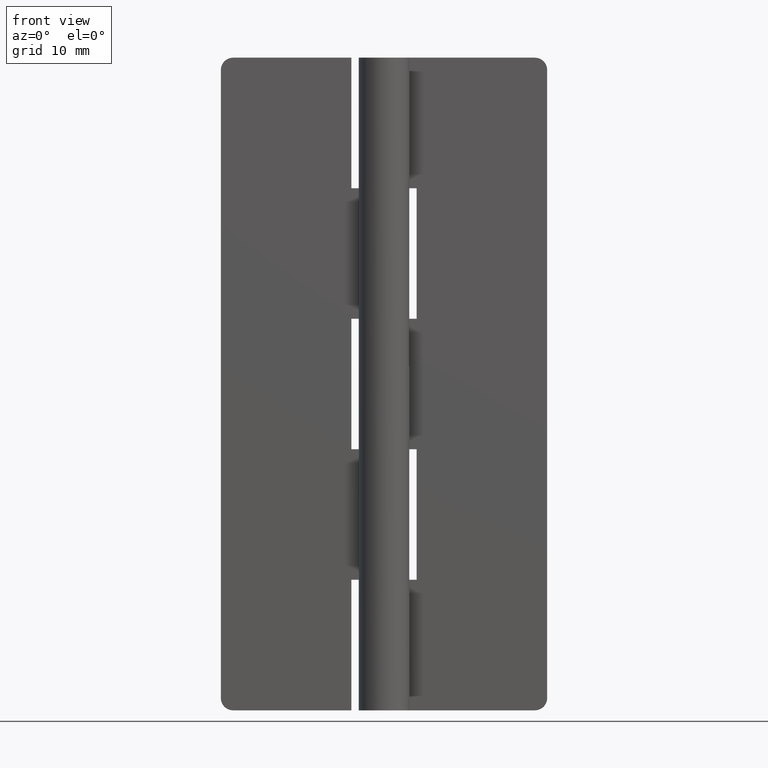
[diagram: clean part render]
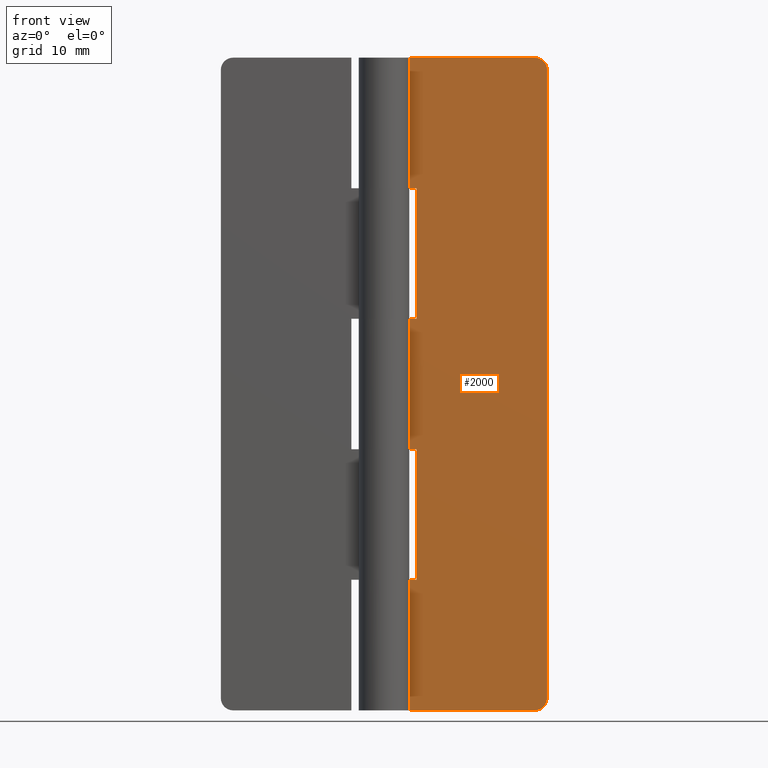
[diagram: same view with one face highlighted and labeled with its STEP entity id]
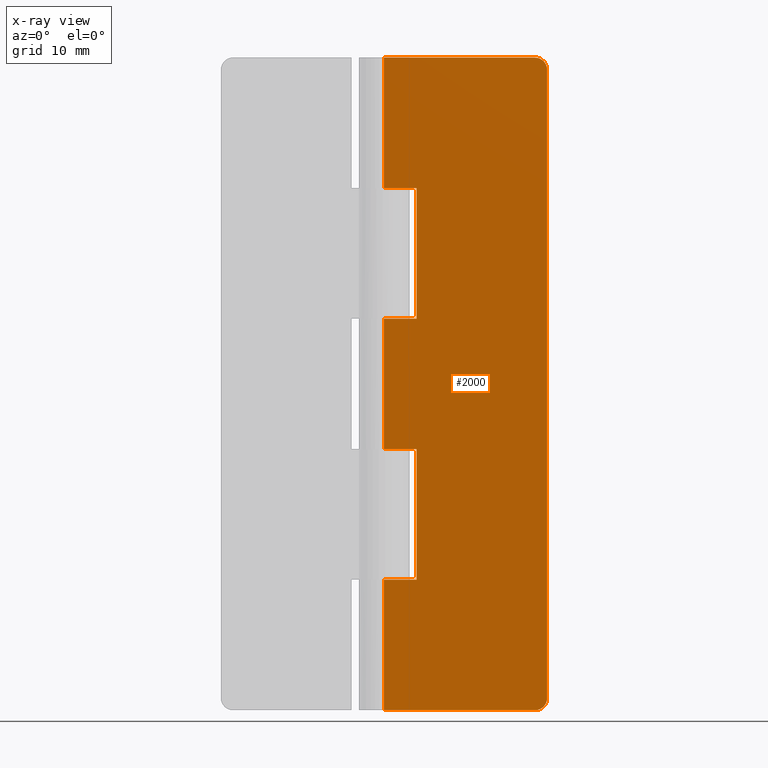
[diagram: x-ray of the same camera — body ghosted, the highlighted face saturated]
A machine part, front view. The second image highlights one B-rep face of the part: STEP entity #2000.
The next image is the same camera in x-ray: the body ghosted, the highlighted face saturated — about 0% of this face is hidden behind the body in this view.
In plain terms, the highlighted face is a freeform B-spline surface patch.
Its self-contained STEP definition (entity closure, byte-faithful):
#970=CARTESIAN_POINT('',(-2.755372E-016,1.500000000000000,63.999992999999897));
#971=VERTEX_POINT('',#970);
#987=CARTESIAN_POINT('',(-2.755364E-016,1.500000000000000,79.999992999999890));
#988=VERTEX_POINT('',#987);
#989=CARTESIAN_POINT('',(-2.755364E-016,1.500000000000000,79.999992999999890));
#990=CARTESIAN_POINT('',(-2.755372E-016,1.500000000000000,63.999992999999897));
#991=QUASI_UNIFORM_CURVE('',1,(#989,#990),.UNSPECIFIED.,.F.,.U.);
#992=EDGE_CURVE('',#988,#971,#991,.T.);
#1200=CARTESIAN_POINT('',(-2.755372E-016,1.500000000000000,16.0));
#1201=VERTEX_POINT('',#1200);
#1202=CARTESIAN_POINT('',(-2.755364E-016,1.500000000000000,0.0));
#1203=VERTEX_POINT('',#1202);
#1204=CARTESIAN_POINT('',(-2.755372E-016,1.500000000000000,16.0));
#1205=CARTESIAN_POINT('',(-2.755364E-016,1.500000000000000,0.0));
#1206=QUASI_UNIFORM_CURVE('',1,(#1204,#1205),.UNSPECIFIED.,.F.,.U.);
#1207=EDGE_CURVE('',#1201,#1203,#1206,.T.);
#1543=CARTESIAN_POINT('',(20.0,1.500000000000000,78.499992999999890));
#1544=VERTEX_POINT('',#1543);
#1545=CARTESIAN_POINT('',(18.500000000000000,1.500000000000000,79.999992999999890));
#1546=VERTEX_POINT('',#1545);
#1547=CARTESIAN_POINT('',(20.0,1.500000000000000,78.499992999999890));
#1548=CARTESIAN_POINT('',(20.000178523774490,1.500000000000001,78.684105104037585));
#1549=CARTESIAN_POINT('',(19.949638166129070,1.500000000000000,78.953944211892406));
#1550=CARTESIAN_POINT('',(19.771350052891041,1.499999999999999,79.319239732970445));
#1551=CARTESIAN_POINT('',(19.570176106960488,1.500000000000000,79.570623503139785));
#1552=CARTESIAN_POINT('',(19.297955731712040,1.500000000000000,79.783024714451770));
#1553=CARTESIAN_POINT('',(18.953987153785821,1.499999999999998,79.950942547732652));
#1554=CARTESIAN_POINT('',(18.671825384450528,1.500000000000006,80.000118908166641));
#1555=CARTESIAN_POINT('',(18.500000000000000,1.500000000000000,79.999992999999890));
#1556=B_SPLINE_CURVE_WITH_KNOTS('',3,(#1547,#1548,#1549,#1550,#1551,#1552,#1553,#1554,#1555),.UNSPECIFIED.,.F.,.U.,(4,1,1,1,1,1,4),(0.000000155784129,0.552245198398489,0.809965692573615,1.214921786606415,1.509469885799841,1.840824165891554,2.356253616514417),.UNSPECIFIED.);
#1557=EDGE_CURVE('',#1544,#1546,#1556,.T.);
#1587=CARTESIAN_POINT('',(18.500000000000000,1.500000000000000,0.0));
#1588=VERTEX_POINT('',#1587);
#1589=CARTESIAN_POINT('',(20.0,1.500000000000000,1.499999999999946));
#1590=VERTEX_POINT('',#1589);
#1591=CARTESIAN_POINT('',(18.500000000000000,1.500000000000000,0.0));
#1592=CARTESIAN_POINT('',(18.720949731654251,1.500000000000001,-0.000337399588411));
#1593=CARTESIAN_POINT('',(19.101090521542069,1.499999999999998,0.085619543185481));
#1594=CARTESIAN_POINT('',(19.521253181748261,1.500000000000003,0.373957292317985));
#1595=CARTESIAN_POINT('',(19.772221378416909,1.499999999999999,0.679857069147921));
#1596=CARTESIAN_POINT('',(19.950938973949309,1.500000000000001,1.046019893959789));
#1597=CARTESIAN_POINT('',(20.000129013770358,1.500000000000000,1.328172726951464));
#1598=CARTESIAN_POINT('',(20.0,1.500000000000000,1.499999999999946));
#1599=B_SPLINE_CURVE_WITH_KNOTS('',3,(#1591,#1592,#1593,#1594,#1595,#1596,#1597,#1598),.UNSPECIFIED.,.F.,.U.,(4,1,1,1,1,4),(0.000000155788698,0.662697979282108,1.141330928466820,1.509469885800160,1.840824165891491,2.356253616514293),.UNSPECIFIED.);
#1600=EDGE_CURVE('',#1588,#1590,#1599,.T.);
#1626=CARTESIAN_POINT('',(3.999987999999915,1.500000000000000,16.0));
#1627=VERTEX_POINT('',#1626);
#1628=CARTESIAN_POINT('',(3.999987999999915,1.500000000000000,16.0));
#1629=CARTESIAN_POINT('',(-2.755372E-016,1.500000000000000,16.0));
#1630=QUASI_UNIFORM_CURVE('',1,(#1628,#1629),.UNSPECIFIED.,.F.,.U.);
#1631=EDGE_CURVE('',#1627,#1201,#1630,.T.);
#1694=CARTESIAN_POINT('',(3.999987999999915,1.499999999999946,32.0));
#1695=VERTEX_POINT('',#1694);
#1701=CARTESIAN_POINT('',(-2.755372E-016,1.500000000000000,32.0));
#1702=VERTEX_POINT('',#1701);
#1703=CARTESIAN_POINT('',(-2.755372E-016,1.500000000000000,32.0));
#1704=CARTESIAN_POINT('',(3.999987999999915,1.499999999999946,32.0));
#1705=QUASI_UNIFORM_CURVE('',1,(#1703,#1704),.UNSPECIFIED.,.F.,.U.);
#1706=EDGE_CURVE('',#1702,#1695,#1705,.T.);
#1758=CARTESIAN_POINT('',(3.999987999999915,1.499999999999946,32.0));
#1759=CARTESIAN_POINT('',(3.999987999999915,1.500000000000000,16.0));
#1760=QUASI_UNIFORM_CURVE('',1,(#1758,#1759),.UNSPECIFIED.,.F.,.U.);
#1761=EDGE_CURVE('',#1695,#1627,#1760,.T.);
#1775=CARTESIAN_POINT('',(3.999987999999915,1.499999999999946,63.999992999999897));
#1776=VERTEX_POINT('',#1775);
#1782=CARTESIAN_POINT('',(-2.755372E-016,1.500000000000000,63.999992999999897));
#1783=CARTESIAN_POINT('',(3.999987999999915,1.499999999999946,63.999992999999897));
#1784=QUASI_UNIFORM_CURVE('',1,(#1782,#1783),.UNSPECIFIED.,.F.,.U.);
#1785=EDGE_CURVE('',#971,#1776,#1784,.T.);
#1864=CARTESIAN_POINT('',(-2.755372E-016,1.500000000000000,47.999992999999897));
#1865=VERTEX_POINT('',#1864);
#1882=CARTESIAN_POINT('',(3.999987999999915,1.500000000000000,47.999992999999897));
#1883=VERTEX_POINT('',#1882);
#1884=CARTESIAN_POINT('',(3.999987999999915,1.500000000000000,47.999992999999897));
#1885=CARTESIAN_POINT('',(-2.755372E-016,1.500000000000000,47.999992999999897));
#1886=QUASI_UNIFORM_CURVE('',1,(#1884,#1885),.UNSPECIFIED.,.F.,.U.);
#1887=EDGE_CURVE('',#1883,#1865,#1886,.T.);
#1911=CARTESIAN_POINT('',(3.999987999999915,1.499999999999946,63.999992999999897));
#1912=CARTESIAN_POINT('',(3.999987999999915,1.500000000000000,47.999992999999897));
#1913=QUASI_UNIFORM_CURVE('',1,(#1911,#1912),.UNSPECIFIED.,.F.,.U.);
#1914=EDGE_CURVE('',#1776,#1883,#1913,.T.);
#1926=CARTESIAN_POINT('',(-2.755364E-016,1.500000000000000,0.0));
#1927=CARTESIAN_POINT('',(18.500000000000000,1.500000000000000,0.0));
#1928=QUASI_UNIFORM_CURVE('',1,(#1926,#1927),.UNSPECIFIED.,.F.,.U.);
#1929=EDGE_CURVE('',#1203,#1588,#1928,.T.);
#1944=CARTESIAN_POINT('',(-2.755364E-016,1.500000000000000,79.999992999999890));
#1945=CARTESIAN_POINT('',(18.500000000000000,1.500000000000000,79.999992999999890));
#1946=QUASI_UNIFORM_CURVE('',1,(#1944,#1945),.UNSPECIFIED.,.F.,.U.);
#1947=EDGE_CURVE('',#988,#1546,#1946,.T.);
#1964=CARTESIAN_POINT('',(20.0,1.500000000000000,78.499992999999890));
#1965=CARTESIAN_POINT('',(20.0,1.500000000000000,1.499999999999946));
#1966=QUASI_UNIFORM_CURVE('',1,(#1964,#1965),.UNSPECIFIED.,.F.,.U.);
#1967=EDGE_CURVE('',#1544,#1590,#1966,.T.);
#1975=CARTESIAN_POINT('',(-0.998999961236118,1.500000000000000,-3.995999495294482));
#1976=CARTESIAN_POINT('',(-0.998999961236118,1.500000000000000,83.995994641061401));
#1977=CARTESIAN_POINT('',(20.999000497677919,1.500000000000000,-3.995999495294482));
#1978=CARTESIAN_POINT('',(20.999000497677919,1.500000000000000,83.995994641061401));
#1979=B_SPLINE_SURFACE_WITH_KNOTS('',1,1,((#1975,#1977),(#1976,#1978)),.UNSPECIFIED.,.F.,.F.,.U.,(2,2),(2,2),(0.0,87.991994136355885),(0.0,21.998000458914039),.UNSPECIFIED.);
#1980=ORIENTED_EDGE('',*,*,#1929,.T.);
#1981=ORIENTED_EDGE('',*,*,#1600,.T.);
#1982=ORIENTED_EDGE('',*,*,#1967,.F.);
#1983=ORIENTED_EDGE('',*,*,#1557,.T.);
#1984=ORIENTED_EDGE('',*,*,#1947,.F.);
#1985=ORIENTED_EDGE('',*,*,#992,.T.);
#1986=ORIENTED_EDGE('',*,*,#1785,.T.);
#1987=ORIENTED_EDGE('',*,*,#1914,.T.);
#1988=ORIENTED_EDGE('',*,*,#1887,.T.);
#1989=CARTESIAN_POINT('',(-2.755372E-016,1.500000000000000,47.999992999999897));
#1990=CARTESIAN_POINT('',(-2.755372E-016,1.500000000000000,32.0));
#1991=QUASI_UNIFORM_CURVE('',1,(#1989,#1990),.UNSPECIFIED.,.F.,.U.);
#1992=EDGE_CURVE('',#1865,#1702,#1991,.T.);
#1993=ORIENTED_EDGE('',*,*,#1992,.T.);
#1994=ORIENTED_EDGE('',*,*,#1706,.T.);
#1995=ORIENTED_EDGE('',*,*,#1761,.T.);
#1996=ORIENTED_EDGE('',*,*,#1631,.T.);
#1997=ORIENTED_EDGE('',*,*,#1207,.T.);
#1998=EDGE_LOOP('',(#1980,#1981,#1982,#1983,#1984,#1985,#1986,#1987,#1988,#1993,#1994,#1995,#1996,#1997));
#1999=FACE_OUTER_BOUND('',#1998,.T.);
#2000=ADVANCED_FACE('',(#1999),#1979,.F.);